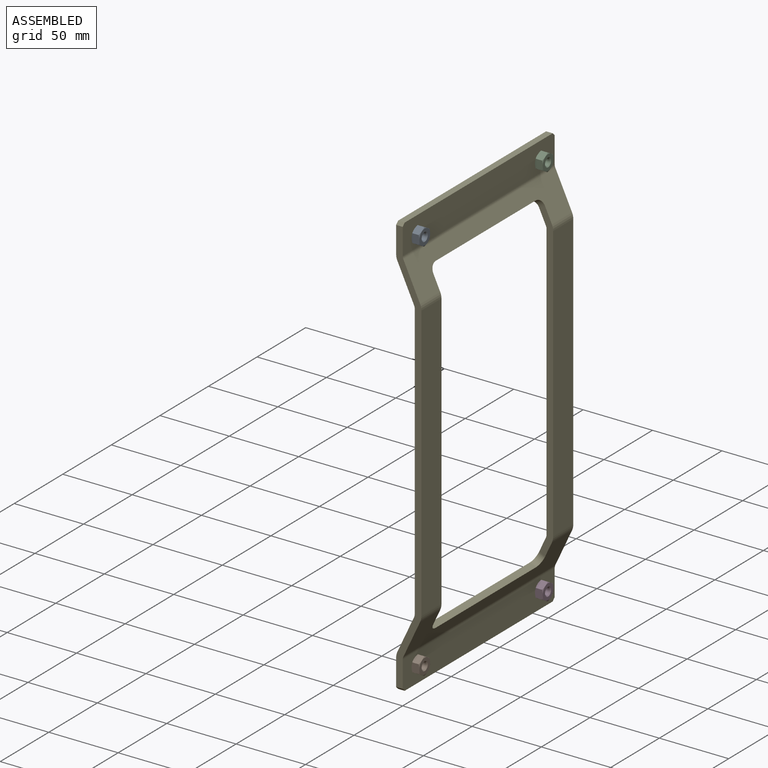
[diagram: assembled view]
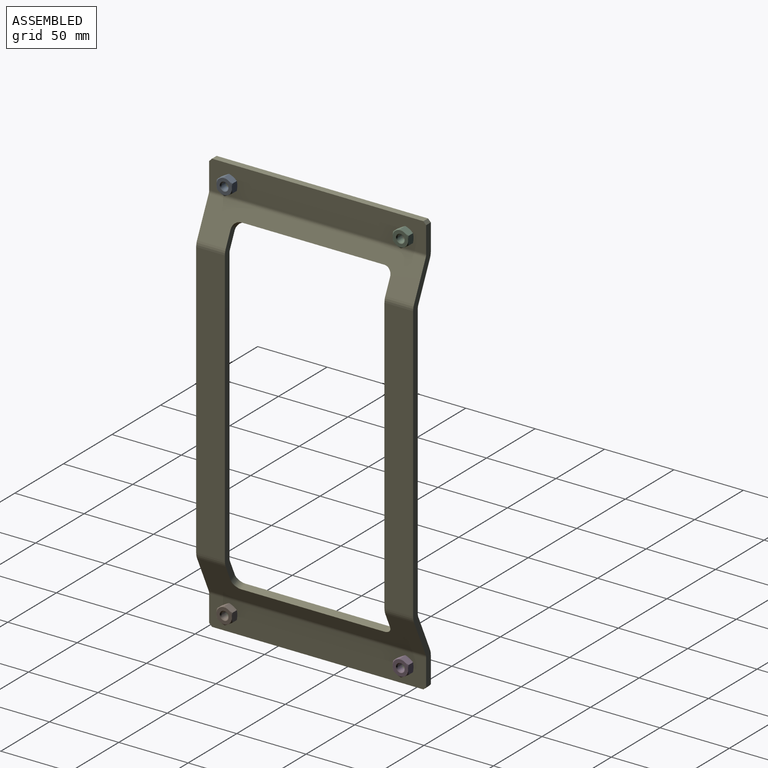
[diagram: assembled view, second angle]
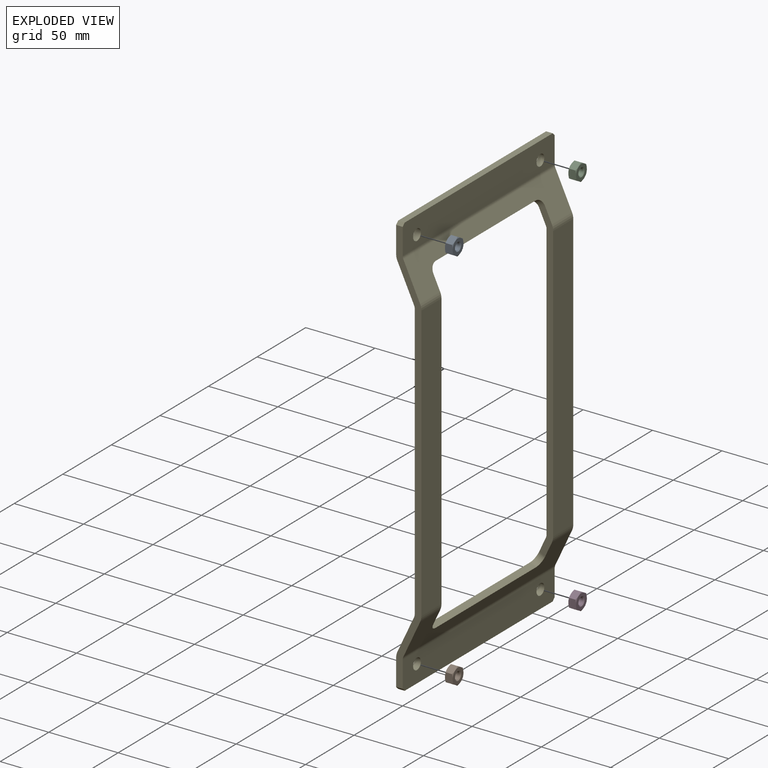
[diagram: exploded view]
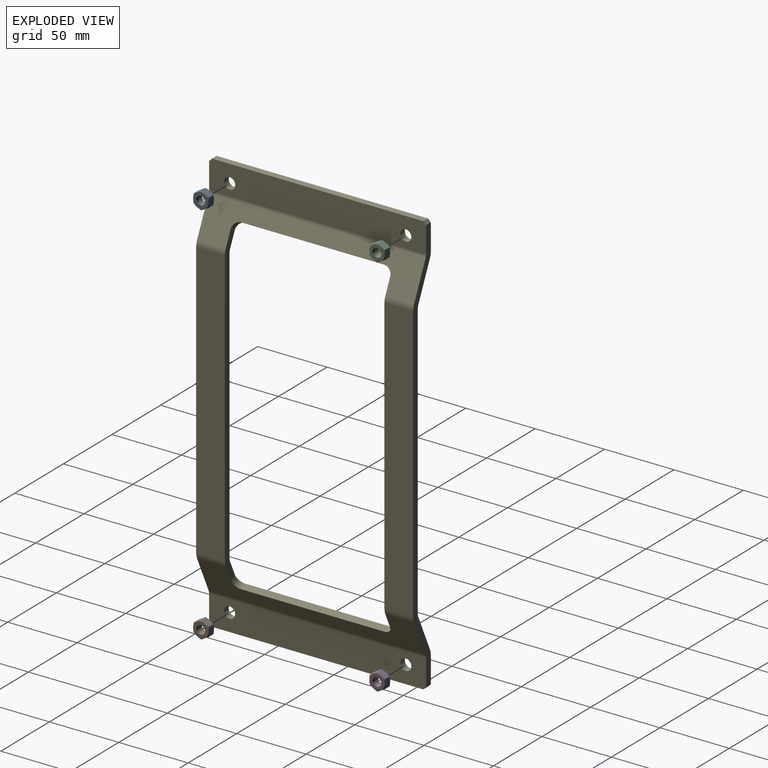
[diagram: exploded view, second angle]
ASSEMBLY  parts=5 mates=4
PART A: 23 faces, bbox 5.6x12.8x12.8 mm
  f0: cone r=5.99mm half-angle=60deg, axis (-1,0,0), area 1.9mm2, adj f6,f7,f8
  f1: cone r=5.99mm half-angle=60deg, axis (-1,0,0), area 1.9mm2, adj f6,f8,f9
  f2: cone r=5.99mm half-angle=60deg, axis (-1,0,0), area 1.9mm2, adj f6,f9,f10
  f3: cone r=5.99mm half-angle=60deg, axis (-1,0,0), area 1.9mm2, adj f6,f7,f11
  f4: cone r=5.99mm half-angle=60deg, axis (-1,0,0), area 1.9mm2, adj f6,f11,f12
  f5: cone r=5.99mm half-angle=60deg, axis (-1,0,0), area 1.9mm2, adj f6,f10,f12
  f6: plane 11.11x11.11mm, normal (1,0,0), area 65.3mm2, adj f0,f1,f2,f3,f4,f5,f13
  f7: plane 6.42x5.56mm, normal (0,1,0), area 33.5mm2, adj f0,f3,f8,f11,f14,f15
  f8: plane 5.56x5.56mm, normal (0,0.5,0.87), area 33.5mm2, adj f0,f1,f7,f9,f15,f16
  f9: plane 5.56x5.56mm, normal (0,-0.5,0.87), area 33.5mm2, adj f1,f2,f8,f10,f16,f17
  f10: plane 6.42x5.56mm, normal (0,-1,0), area 33.5mm2, adj f2,f5,f9,f12,f17,f18
  f11: plane 5.56x5.56mm, normal (0,0.5,-0.87), area 33.5mm2, adj f3,f4,f7,f12,f14,f19
  f12: plane 5.56x5.56mm, normal (0,-0.5,-0.87), area 33.5mm2, adj f4,f5,f10,f11,f18,f19
  f13: cone r=2.83mm half-angle=45deg, axis (1,0,0), area 17.3mm2, adj f6,f20
  f14: cone r=5.99mm half-angle=60deg, axis (1,0,0), area 1.9mm2, adj f7,f11,f21
  f15: cone r=5.99mm half-angle=60deg, axis (1,0,0), area 1.9mm2, adj f7,f8,f21
  f16: cone r=5.99mm half-angle=60deg, axis (1,0,0), area 1.9mm2, adj f8,f9,f21
  f17: cone r=5.99mm half-angle=60deg, axis (1,0,0), area 1.9mm2, adj f9,f10,f21
  f18: cone r=5.99mm half-angle=60deg, axis (1,0,0), area 1.9mm2, adj f10,f12,f21
  f19: cone r=5.99mm half-angle=60deg, axis (1,0,0), area 1.9mm2, adj f11,f12,f21
  f20: cylinder r=2.49mm len=4.98mm, axis (1,0,0), area 65.4mm2, adj f13,f22
  f21: plane 11.11x11.11mm, normal (-1,0,0), area 65.3mm2, adj f14,f15,f16,f17,f18,f19,f22
  f22: cone r=2.83mm half-angle=45deg, axis (-1,0,0), area 17.3mm2, adj f20,f21
PART B: same geometry as A
PART C: same geometry as A
PART D: same geometry as A
PART E: 68 faces, bbox 305x18.2x156.4 mm
  f0: plane 199.05x4.78mm, normal (0,0,1), area 950.5mm2, adj f2,f3,f34,f65
  f1: plane 199.05x4.78mm, normal (0,0,-1), area 950.5mm2, adj f2,f3,f35,f64
  f2: plane 199.05x20.7mm, normal (0,1,0), area 4120.4mm2, adj f0,f1,f37,f67
  f3: plane 199.05x20.7mm, normal (0,-1,0), area 4120.4mm2, adj f0,f1,f36,f66
  f4: plane 199.05x4.78mm, normal (0,0,-1), area 950.5mm2, adj f6,f7,f31,f60
  f5: plane 199.05x4.78mm, normal (0,0,1), area 950.5mm2, adj f6,f7,f30,f61
  f6: plane 199.05x20.7mm, normal (0,1,0), area 4120.4mm2, adj f4,f5,f33,f63
  f7: plane 199.05x20.7mm, normal (0,-1,0), area 4120.4mm2, adj f4,f5,f32,f62
  f8: plane 103x4.33mm, normal (-0.91,-0.42,0), area 491.8mm2, adj f13,f14,f15,f16
  f9: plane 12.54x9.23mm, normal (0,0,-1), area 55.4mm2, adj f13,f14,f16,f35
  f10: plane 27.92x16.4mm, normal (0,0,1), area 136.4mm2, adj f13,f14,f26,f34
  f11: plane 27.92x16.4mm, normal (0,0,-1), area 136.4mm2, adj f13,f14,f27,f31
  f12: plane 12.54x9.23mm, normal (0,0,1), area 55.4mm2, adj f13,f14,f15,f30
  f13: plane 156.4x25.9mm, normal (-0.42,0.91,0), area 2459.9mm2, adj f8,f9,f10,f11,f12,f15,f16,f28
  f14: plane 156.4x25.9mm, normal (0.42,-0.91,0), area 2459.9mm2, adj f8,f9,f10,f11,f12,f15,f16,f29
  f15: cylinder r=6mm len=7.46mm, axis (0.42,-0.91,0), area 45mm2, adj f8,f12,f13,f14
  f16: cylinder r=6mm len=7.46mm, axis (0.42,-0.91,0), area 45mm2, adj f8,f9,f13,f14
  f17: plane 152.34x4.78mm, normal (1,0,0), area 727.4mm2, adj f22,f23,f24,f25
  f18: plane 18.99x4.78mm, normal (0,0,-1), area 90.7mm2, adj f22,f23,f24,f27
  f19: cylinder r=4.01mm len=8.03mm, axis (0,1,0), area 120.4mm2, adj f22,f23
  f20: cylinder r=4.01mm len=8.03mm, axis (0,1,0), area 120.4mm2, adj f22,f23
  f21: plane 18.99x4.78mm, normal (0,0,1), area 90.7mm2, adj f22,f23,f25,f26
  f22: plane 156.4x21.02mm, normal (0,1,0), area 3182.5mm2, adj f17,f18,f19,f20,f21,f24,f25,f28
  f23: plane 156.4x21.02mm, normal (0,-1,0), area 3182.5mm2, adj f17,f18,f19,f20,f21,f24,f25,f29
  f24: plane 4.78x2.03mm, normal (0.71,0,-0.71), area 13.7mm2, adj f17,f18,f22,f23
  f25: plane 4.78x2.03mm, normal (0.71,0,0.71), area 13.7mm2, adj f17,f21,f22,f23
  f26: plane 5.22x4.04mm, normal (0,0,1), area 14.9mm2, adj f10,f21,f28,f29
  f27: plane 5.22x4.04mm, normal (0,0,-1), area 14.9mm2, adj f11,f18,f28,f29
  f28: cylinder r=9.55mm len=156.4mm, axis (0,0,1), area 651.7mm2, adj f13,f22,f26,f27
  f29: cylinder r=4.78mm len=156.4mm, axis (0,0,1), area 325.9mm2, adj f14,f23,f26,f27
  f30: plane 5.22x4.04mm, normal (0,0,1), area 14.9mm2, adj f5,f12,f32,f33
  f31: plane 5.22x4.04mm, normal (0,0,-1), area 14.9mm2, adj f4,f11,f32,f33
  f32: cylinder r=9.55mm len=20.7mm, axis (0,0,1), area 86.3mm2, adj f7,f14,f30,f31
  f33: cylinder r=4.78mm len=20.7mm, axis (0,0,1), area 43.1mm2, adj f6,f13,f30,f31
  f34: plane 5.22x4.04mm, normal (0,0,1), area 14.9mm2, adj f0,f10,f36,f37
  f35: plane 5.22x4.04mm, normal (0,0,-1), area 14.9mm2, adj f1,f9,f36,f37
  f36: cylinder r=9.55mm len=20.7mm, axis (0,0,1), area 86.3mm2, adj f3,f14,f34,f35
  f37: cylinder r=4.78mm len=20.7mm, axis (0,0,1), area 43.1mm2, adj f2,f13,f34,f35
  f38: plane 103x4.33mm, normal (0.91,-0.42,0), area 491.8mm2, adj f43,f44,f45,f46
  f39: plane 12.54x9.23mm, normal (0,0,1), area 55.4mm2, adj f43,f44,f45,f61
  f40: plane 27.92x16.4mm, normal (0,0,-1), area 136.4mm2, adj f43,f44,f56,f60
  f41: plane 27.92x16.4mm, normal (0,0,1), area 136.4mm2, adj f43,f44,f57,f65
  f42: plane 12.54x9.23mm, normal (0,0,-1), area 55.4mm2, adj f43,f44,f46,f64
  f43: plane 156.4x25.9mm, normal (0.42,0.91,0), area 2459.9mm2, adj f38,f39,f40,f41,f42,f45,f46,f58
  f44: plane 156.4x25.9mm, normal (-0.42,-0.91,0), area 2459.9mm2, adj f38,f39,f40,f41,f42,f45,f46,f59
  f45: cylinder r=6mm len=7.46mm, axis (-0.42,-0.91,0), area 45mm2, adj f38,f39,f43,f44
  f46: cylinder r=6mm len=7.46mm, axis (-0.42,-0.91,0), area 45mm2, adj f38,f42,f43,f44
  f47: plane 152.34x4.78mm, normal (-1,0,0), area 727.4mm2, adj f52,f53,f54,f55
  f48: plane 18.99x4.78mm, normal (0,0,1), area 90.7mm2, adj f52,f53,f55,f57
  f49: cylinder r=4.01mm len=8.03mm, axis (0,1,0), area 120.4mm2, adj f52,f53
  f50: cylinder r=4.01mm len=8.03mm, axis (0,1,0), area 120.4mm2, adj f52,f53
  f51: plane 18.99x4.78mm, normal (0,0,-1), area 90.7mm2, adj f52,f53,f54,f56
  f52: plane 156.4x21.02mm, normal (0,1,0), area 3182.5mm2, adj f47,f48,f49,f50,f51,f54,f55,f58
  f53: plane 156.4x21.02mm, normal (0,-1,0), area 3182.5mm2, adj f47,f48,f49,f50,f51,f54,f55,f59
  f54: plane 4.78x2.03mm, normal (-0.71,0,-0.71), area 13.7mm2, adj f47,f51,f52,f53
  f55: plane 4.78x2.03mm, normal (-0.71,0,0.71), area 13.7mm2, adj f47,f48,f52,f53
  f56: plane 5.22x4.04mm, normal (0,0,-1), area 14.9mm2, adj f40,f51,f58,f59
  f57: plane 5.22x4.04mm, normal (0,0,1), area 14.9mm2, adj f41,f48,f58,f59
  f58: cylinder r=9.55mm len=156.4mm, axis (0,0,-1), area 651.7mm2, adj f43,f52,f56,f57
  f59: cylinder r=4.78mm len=156.4mm, axis (0,0,-1), area 325.9mm2, adj f44,f53,f56,f57
  f60: plane 5.22x4.04mm, normal (0,0,-1), area 14.9mm2, adj f4,f40,f62,f63
  f61: plane 5.22x4.04mm, normal (0,0,1), area 14.9mm2, adj f5,f39,f62,f63
  f62: cylinder r=9.55mm len=20.7mm, axis (0,0,-1), area 86.3mm2, adj f7,f44,f60,f61
  f63: cylinder r=4.78mm len=20.7mm, axis (0,0,-1), area 43.1mm2, adj f6,f43,f60,f61
  f64: plane 5.22x4.04mm, normal (0,0,-1), area 14.9mm2, adj f1,f42,f66,f67
  f65: plane 5.22x4.04mm, normal (0,0,1), area 14.9mm2, adj f0,f41,f66,f67
  f66: cylinder r=9.55mm len=20.7mm, axis (0,0,-1), area 86.3mm2, adj f3,f44,f64,f65
  f67: cylinder r=4.78mm len=20.7mm, axis (0,0,-1), area 43.1mm2, adj f2,f43,f64,f65
PLACE A t=(-54.72,-28.44,309.06)mm
PLACE B t=(-54.72,-28.44,29.46)mm
PLACE C t=(-54.72,98.56,309.06)mm
PLACE D rot(axis=(1,0,0),180deg) t=(-54.72,98.56,29.46)mm
PLACE E rot(axis=(-0.58,0.58,0.58),120deg) t=(-46.07,35.06,169.26)mm
MATE fastened E.f19 <-> B.f22  axis (1,0,0) through (-54.72,-28.44,29.46)mm
MATE fastened C.f22 <-> E.f49  axis (-1,0,0) through (-54.72,98.56,309.06)mm
MATE fastened A.f22 <-> E.f50  axis (-1,0,0) through (-54.72,-28.44,309.06)mm
MATE fastened D.f22 <-> E.f20  axis (-1,0,0) through (-54.72,98.56,29.46)mm
